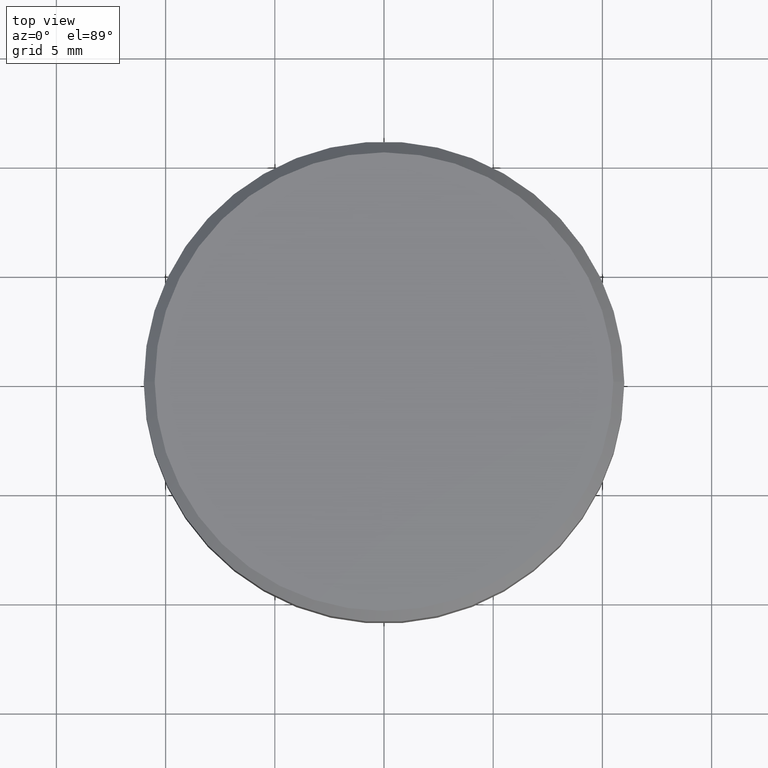
[diagram: clean part render]
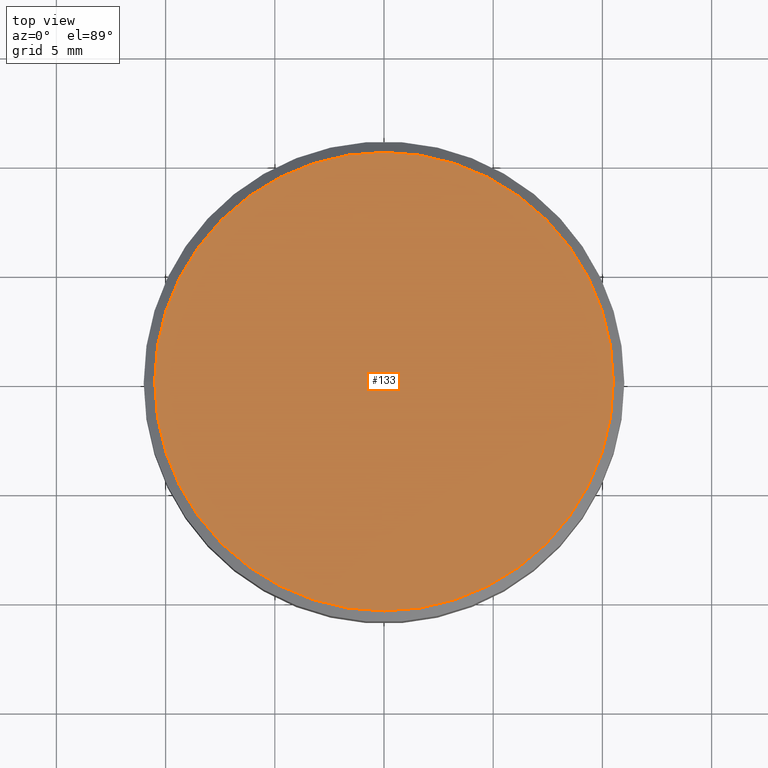
[diagram: same view with one face highlighted and labeled with its STEP entity id]
A machine part, top view. The second image highlights one B-rep face of the part: STEP entity #133.
In plain terms, the highlighted planar face has unit normal (0, -0, 1).
Its self-contained STEP definition (entity closure, byte-faithful):
#16 = DIRECTION ( 'NONE',  ( 0.000000000000000000, -0.000000000000000000, 1.000000000000000000 ) ) ;
#48 = DIRECTION ( 'NONE',  ( 1.000000000000000000, 0.000000000000000000, 0.000000000000000000 ) ) ;
#117 = DIRECTION ( 'NONE',  ( 1.000000000000000000, 0.000000000000000000, 0.000000000000000000 ) ) ;
#132 = DIRECTION ( 'NONE',  ( -0.000000000000000000, -0.000000000000000000, 1.000000000000000000 ) ) ;
#133 = ADVANCED_FACE ( 'NONE', ( #291 ), #264, .T. ) ;
#159 = AXIS2_PLACEMENT_3D ( 'NONE', #332, #214, #117 ) ;
#168 = CARTESIAN_POINT ( 'NONE',  ( 0.000000000000000000, 0.000000000000000000, 0.000000000000000000 ) ) ;
#207 = VERTEX_POINT ( 'NONE', #397 ) ;
#214 = DIRECTION ( 'NONE',  ( -0.000000000000000000, -0.000000000000000000, 1.000000000000000000 ) ) ;
#220 = VERTEX_POINT ( 'NONE', #266 ) ;
#229 = ORIENTED_EDGE ( 'NONE', *, *, #392, .T. ) ;
#257 = AXIS2_PLACEMENT_3D ( 'NONE', #168, #132, #288 ) ;
#264 = PLANE ( 'NONE',  #306 ) ;
#266 = CARTESIAN_POINT ( 'NONE',  ( 10.50000000000000533, 1.316495309083405012E-15, 0.000000000000000000 ) ) ;
#267 = ORIENTED_EDGE ( 'NONE', *, *, #309, .T. ) ;
#286 = CIRCLE ( 'NONE', #257, 10.50000000000000533 ) ;
#288 = DIRECTION ( 'NONE',  ( 1.000000000000000000, 0.000000000000000000, 0.000000000000000000 ) ) ;
#291 = FACE_OUTER_BOUND ( 'NONE', #409, .T. ) ;
#306 = AXIS2_PLACEMENT_3D ( 'NONE', #356, #16, #48 ) ;
#309 = EDGE_CURVE ( 'NONE', #207, #220, #286, .T. ) ;
#332 = CARTESIAN_POINT ( 'NONE',  ( 0.000000000000000000, 0.000000000000000000, 0.000000000000000000 ) ) ;
#356 = CARTESIAN_POINT ( 'NONE',  ( 0.000000000000000000, 0.000000000000000000, 0.000000000000000000 ) ) ;
#383 = CIRCLE ( 'NONE', #159, 10.50000000000000533 ) ;
#392 = EDGE_CURVE ( 'NONE', #220, #207, #383, .T. ) ;
#397 = CARTESIAN_POINT ( 'NONE',  ( -10.50000000000000533, 0.000000000000000000, 0.000000000000000000 ) ) ;
#409 = EDGE_LOOP ( 'NONE', ( #267, #229 ) ) ;